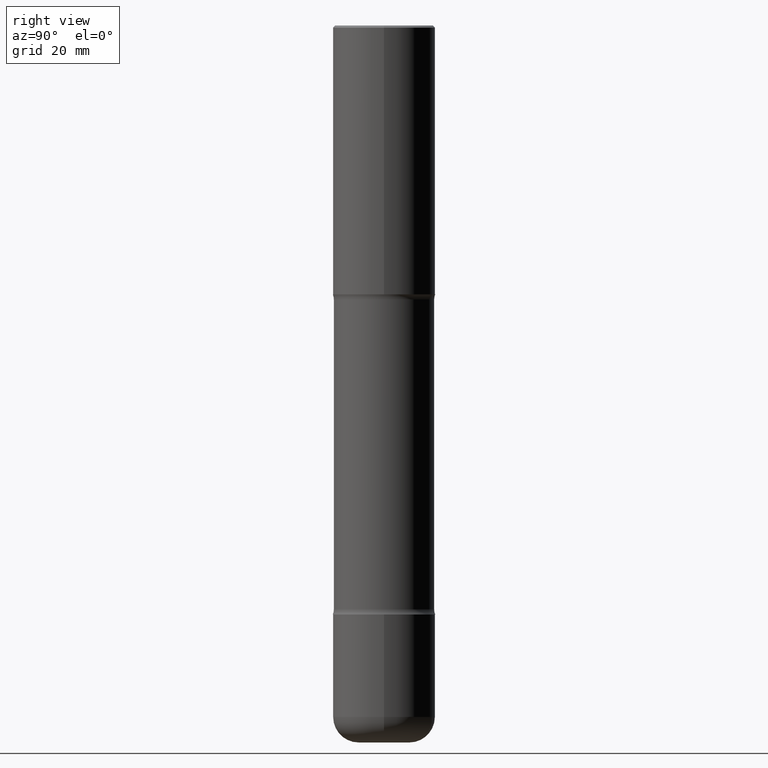
[diagram: clean part render]
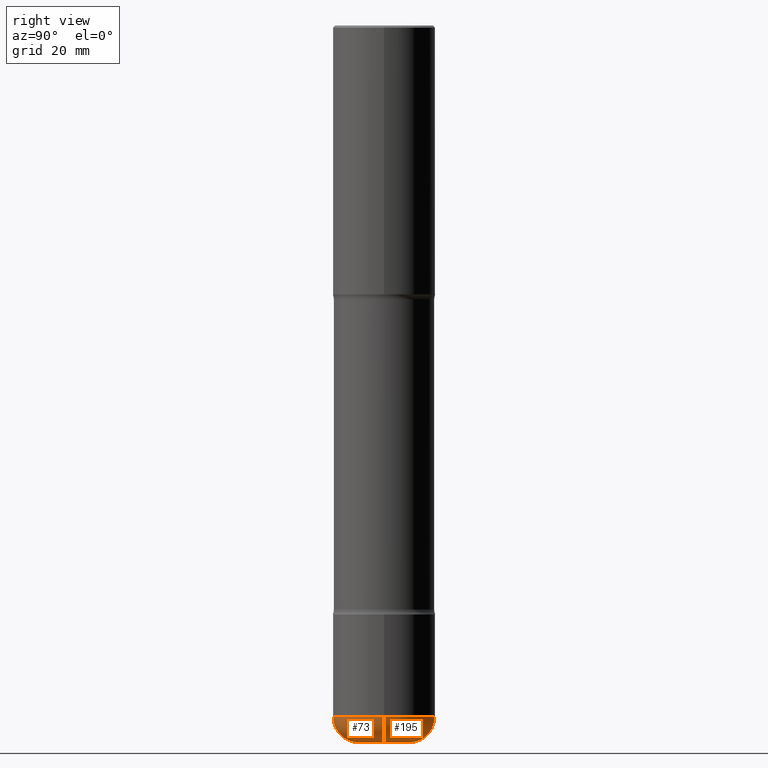
[diagram: same view with one multi-face feature highlighted, each face labeled with its STEP entity id]
A machine part, right view. The highlighted faces form ONE feature: a constant-radius fillet chain: 2 tangent blend faces with common blend radius 6.35 mm. The faces share edges in the B-rep.
Their STEP definitions:
[1] entity #195 (Torus):
#6 = EDGE_LOOP ( 'NONE', ( #405, #224, #31, #177 ) ) ;
#29 = DIRECTION ( 'NONE',  ( 7.105427357601001859E-15, 1.000000000000000000, -3.491481338843145583E-15 ) ) ;
#31 = ORIENTED_EDGE ( 'NONE', *, *, #157, .F. ) ;
#36 = CARTESIAN_POINT ( 'NONE',  ( 0.5000000000000006661, -2.705898037603436870E-14, -6.750000000000000888 ) ) ;
#40 = DIRECTION ( 'NONE',  ( 1.000000000000000000, -6.982962677686267499E-15, 0.000000000000000000 ) ) ;
#47 = CARTESIAN_POINT ( 'NONE',  ( 0.2500000000000005551, -2.531323970661280518E-14, -6.750000000000000888 ) ) ;
#49 = EDGE_CURVE ( 'NONE', #181, #363, #183, .T. ) ;
#53 = CARTESIAN_POINT ( 'NONE',  ( 1.711828164329595842E-28, -2.444036937190202499E-14, -7.000000000000001776 ) ) ;
#62 = CARTESIAN_POINT ( 'NONE',  ( -0.5000000000000006661, -2.001478535839073126E-14, -6.750000000000000888 ) ) ;
#72 = DIRECTION ( 'NONE',  ( -1.000000000000000000, 7.105427357601000281E-15, 0.000000000000000000 ) ) ;
#74 = DIRECTION ( 'NONE',  ( 1.000000000000000000, -6.982962677686265133E-15, 4.883557194083112340E-29 ) ) ;
#79 = VERTEX_POINT ( 'NONE', #62 ) ;
#86 = CARTESIAN_POINT ( 'NONE',  ( -0.2500000000000005551, -2.179114219779098172E-14, -6.750000000000000888 ) ) ;
#157 = EDGE_CURVE ( 'NONE', #508, #79, #197, .T. ) ;
#163 = CARTESIAN_POINT ( 'NONE',  ( 0.2500000000000005551, -2.618611004132359483E-14, -7.000000000000001776 ) ) ;
#173 = AXIS2_PLACEMENT_3D ( 'NONE', #86, #29, #72 ) ;
#177 = ORIENTED_EDGE ( 'NONE', *, *, #472, .F. ) ;
#179 = EDGE_CURVE ( 'NONE', #363, #79, #418, .T. ) ;
#181 = VERTEX_POINT ( 'NONE', #163 ) ;
#183 = CIRCLE ( 'NONE', #477, 0.2500000000000005551 ) ;
#195 = ADVANCED_FACE ( 'NONE', ( #337 ), #242, .T. ) ;
#197 = CIRCLE ( 'NONE', #404, 0.5000000000000004441 ) ;
#224 = ORIENTED_EDGE ( 'NONE', *, *, #179, .T. ) ;
#242 = TOROIDAL_SURFACE ( 'NONE', #458, 0.2500000000000005551, 0.2500000000000003331 ) ;
#266 = CARTESIAN_POINT ( 'NONE',  ( -0.2500000000000005551, -2.133939894544624974E-14, -7.000000000000001776 ) ) ;
#279 = DIRECTION ( 'NONE',  ( -2.445468806185136597E-29, 3.491481338843145583E-15, 1.000000000000000000 ) ) ;
#307 = AXIS2_PLACEMENT_3D ( 'NONE', #47, #523, #40 ) ;
#337 = FACE_OUTER_BOUND ( 'NONE', #6, .T. ) ;
#363 = VERTEX_POINT ( 'NONE', #266 ) ;
#364 = DIRECTION ( 'NONE',  ( 1.000000000000000000, -6.982962677686262766E-15, 0.000000000000000000 ) ) ;
#379 = DIRECTION ( 'NONE',  ( -2.445468806185136597E-29, 3.491481338843145583E-15, 1.000000000000000000 ) ) ;
#404 = AXIS2_PLACEMENT_3D ( 'NONE', #535, #279, #416 ) ;
#405 = ORIENTED_EDGE ( 'NONE', *, *, #49, .T. ) ;
#406 = DIRECTION ( 'NONE',  ( -2.445468806185136597E-29, 3.491481338843145583E-15, 1.000000000000000000 ) ) ;
#416 = DIRECTION ( 'NONE',  ( 1.000000000000000000, -6.982962677686264344E-15, 0.000000000000000000 ) ) ;
#418 = CIRCLE ( 'NONE', #173, 0.2500000000000003886 ) ;
#458 = AXIS2_PLACEMENT_3D ( 'NONE', #461, #379, #74 ) ;
#461 = CARTESIAN_POINT ( 'NONE',  ( 1.650691444174967427E-28, -2.356749903719123535E-14, -6.750000000000000888 ) ) ;
#472 = EDGE_CURVE ( 'NONE', #181, #508, #537, .T. ) ;
#477 = AXIS2_PLACEMENT_3D ( 'NONE', #53, #406, #364 ) ;
#508 = VERTEX_POINT ( 'NONE', #36 ) ;
#523 = DIRECTION ( 'NONE',  ( -6.982962677686266711E-15, -1.000000000000000000, 3.491481338843145583E-15 ) ) ;
#535 = CARTESIAN_POINT ( 'NONE',  ( 1.650691444174967427E-28, -2.356749903719123535E-14, -6.750000000000000888 ) ) ;
#537 = CIRCLE ( 'NONE', #307, 0.2500000000000003886 ) ;
[2] entity #73 (Torus):
#5 = CARTESIAN_POINT ( 'NONE',  ( 1.711828164329595842E-28, -2.444036937190202499E-14, -7.000000000000001776 ) ) ;
#15 = FACE_OUTER_BOUND ( 'NONE', #205, .T. ) ;
#18 = EDGE_CURVE ( 'NONE', #363, #181, #527, .T. ) ;
#29 = DIRECTION ( 'NONE',  ( 7.105427357601001859E-15, 1.000000000000000000, -3.491481338843145583E-15 ) ) ;
#36 = CARTESIAN_POINT ( 'NONE',  ( 0.5000000000000006661, -2.705898037603436870E-14, -6.750000000000000888 ) ) ;
#40 = DIRECTION ( 'NONE',  ( 1.000000000000000000, -6.982962677686267499E-15, 0.000000000000000000 ) ) ;
#47 = CARTESIAN_POINT ( 'NONE',  ( 0.2500000000000005551, -2.531323970661280518E-14, -6.750000000000000888 ) ) ;
#62 = CARTESIAN_POINT ( 'NONE',  ( -0.5000000000000006661, -2.001478535839073126E-14, -6.750000000000000888 ) ) ;
#67 = DIRECTION ( 'NONE',  ( 1.000000000000000000, -6.982962677686265133E-15, 4.883557194083112340E-29 ) ) ;
#72 = DIRECTION ( 'NONE',  ( -1.000000000000000000, 7.105427357601000281E-15, 0.000000000000000000 ) ) ;
#73 = ADVANCED_FACE ( 'NONE', ( #15 ), #227, .T. ) ;
#79 = VERTEX_POINT ( 'NONE', #62 ) ;
#86 = CARTESIAN_POINT ( 'NONE',  ( -0.2500000000000005551, -2.179114219779098172E-14, -6.750000000000000888 ) ) ;
#156 = DIRECTION ( 'NONE',  ( -2.445468806185136597E-29, 3.491481338843145583E-15, 1.000000000000000000 ) ) ;
#163 = CARTESIAN_POINT ( 'NONE',  ( 0.2500000000000005551, -2.618611004132359483E-14, -7.000000000000001776 ) ) ;
#173 = AXIS2_PLACEMENT_3D ( 'NONE', #86, #29, #72 ) ;
#179 = EDGE_CURVE ( 'NONE', #363, #79, #418, .T. ) ;
#181 = VERTEX_POINT ( 'NONE', #163 ) ;
#198 = AXIS2_PLACEMENT_3D ( 'NONE', #349, #156, #294 ) ;
#205 = EDGE_LOOP ( 'NONE', ( #334, #443, #463, #385 ) ) ;
#227 = TOROIDAL_SURFACE ( 'NONE', #372, 0.2500000000000005551, 0.2500000000000003331 ) ;
#266 = CARTESIAN_POINT ( 'NONE',  ( -0.2500000000000005551, -2.133939894544624974E-14, -7.000000000000001776 ) ) ;
#292 = EDGE_CURVE ( 'NONE', #79, #508, #453, .T. ) ;
#294 = DIRECTION ( 'NONE',  ( 1.000000000000000000, -6.982962677686264344E-15, 0.000000000000000000 ) ) ;
#307 = AXIS2_PLACEMENT_3D ( 'NONE', #47, #523, #40 ) ;
#334 = ORIENTED_EDGE ( 'NONE', *, *, #179, .F. ) ;
#349 = CARTESIAN_POINT ( 'NONE',  ( 1.650691444174967427E-28, -2.356749903719123535E-14, -6.750000000000000888 ) ) ;
#359 = AXIS2_PLACEMENT_3D ( 'NONE', #5, #361, #449 ) ;
#361 = DIRECTION ( 'NONE',  ( -2.445468806185136597E-29, 3.491481338843145583E-15, 1.000000000000000000 ) ) ;
#363 = VERTEX_POINT ( 'NONE', #266 ) ;
#367 = CARTESIAN_POINT ( 'NONE',  ( 1.650691444174967427E-28, -2.356749903719123535E-14, -6.750000000000000888 ) ) ;
#372 = AXIS2_PLACEMENT_3D ( 'NONE', #367, #533, #67 ) ;
#385 = ORIENTED_EDGE ( 'NONE', *, *, #292, .F. ) ;
#418 = CIRCLE ( 'NONE', #173, 0.2500000000000003886 ) ;
#443 = ORIENTED_EDGE ( 'NONE', *, *, #18, .T. ) ;
#449 = DIRECTION ( 'NONE',  ( 1.000000000000000000, -6.982962677686262766E-15, 0.000000000000000000 ) ) ;
#453 = CIRCLE ( 'NONE', #198, 0.5000000000000004441 ) ;
#463 = ORIENTED_EDGE ( 'NONE', *, *, #472, .T. ) ;
#472 = EDGE_CURVE ( 'NONE', #181, #508, #537, .T. ) ;
#508 = VERTEX_POINT ( 'NONE', #36 ) ;
#523 = DIRECTION ( 'NONE',  ( -6.982962677686266711E-15, -1.000000000000000000, 3.491481338843145583E-15 ) ) ;
#527 = CIRCLE ( 'NONE', #359, 0.2500000000000005551 ) ;
#533 = DIRECTION ( 'NONE',  ( -2.445468806185136597E-29, 3.491481338843145583E-15, 1.000000000000000000 ) ) ;
#537 = CIRCLE ( 'NONE', #307, 0.2500000000000003886 ) ;